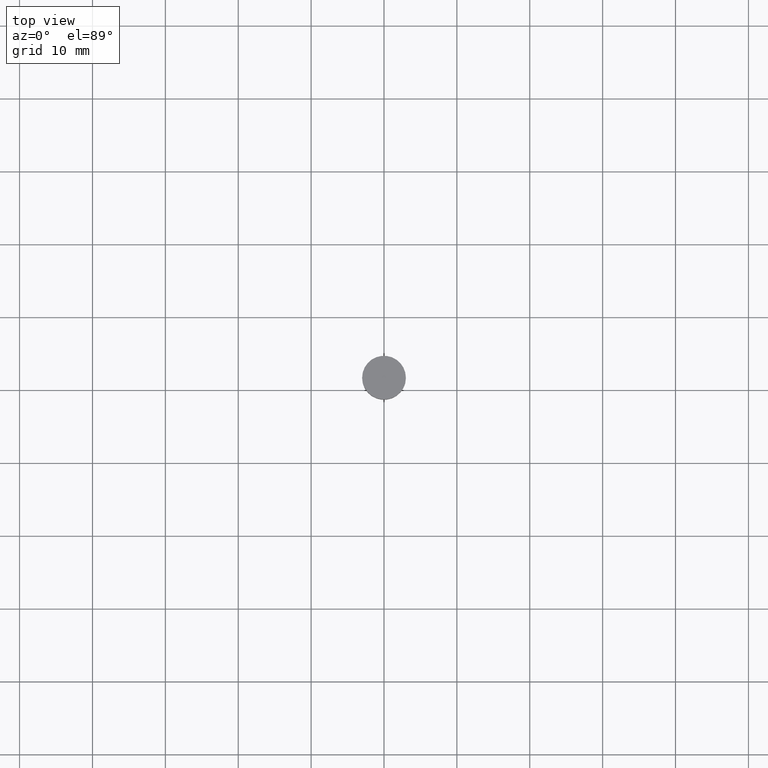
[diagram: clean part render]
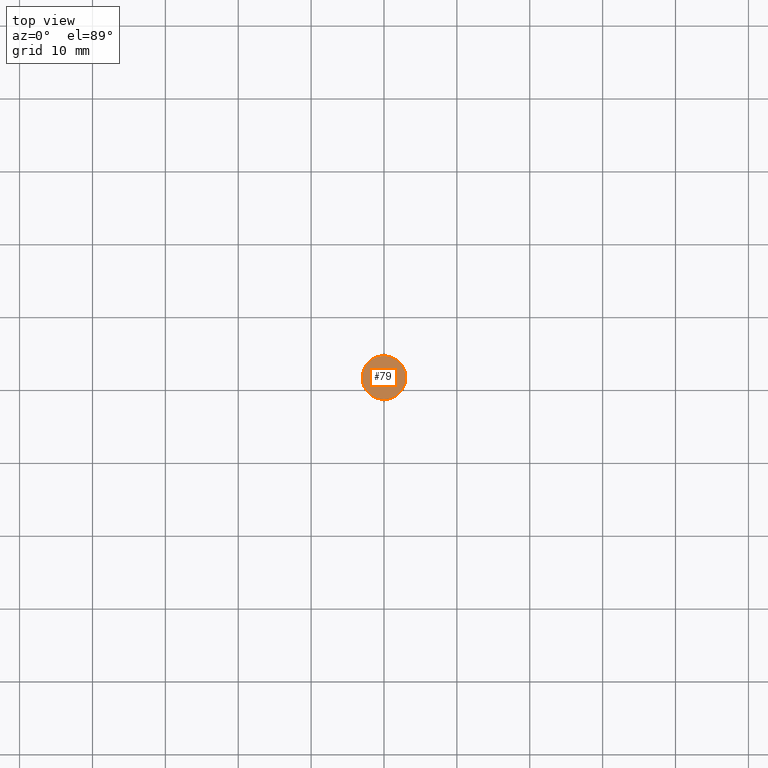
[diagram: same view with one face highlighted and labeled with its STEP entity id]
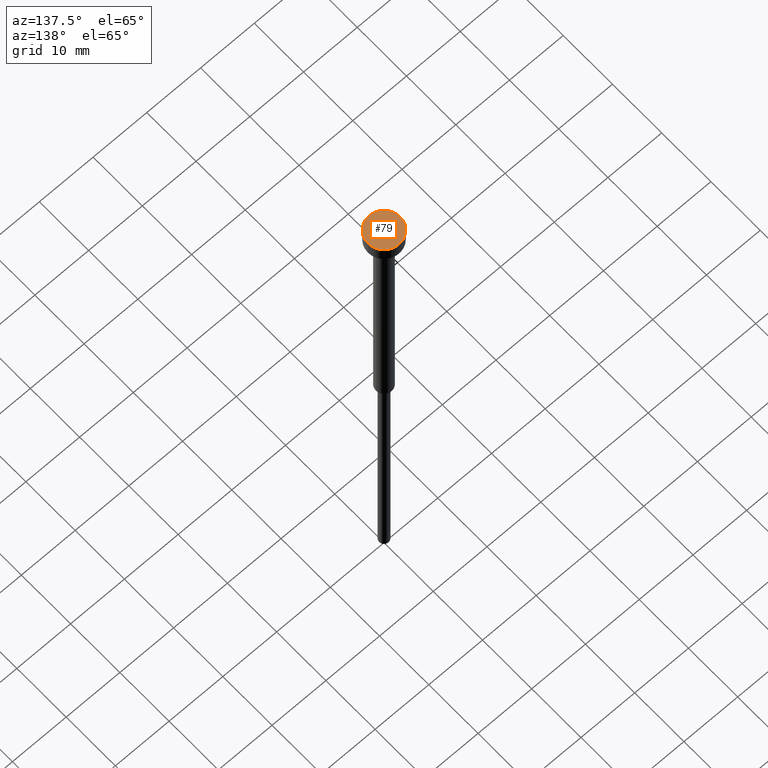
[diagram: same view with one face highlighted and labeled with its STEP entity id]
A machine part, top view. The second image highlights one B-rep face of the part: STEP entity #79.
A second angle (auxiliary view) of the same face is appended — the face is thin or edge-on in the first view.
In plain terms, the highlighted planar face has unit normal (0, -0, 1).
Its self-contained STEP definition (entity closure, byte-faithful):
#7 = EDGE_CURVE ( 'NONE', #144, #146, #316, .T. ) ;
#49 = ORIENTED_EDGE ( 'NONE', *, *, #340, .T. ) ;
#51 = CARTESIAN_POINT ( 'NONE',  ( 3.000000000000000000, 0.000000000000000000, -3.673940397442059868E-16 ) ) ;
#52 = PLANE ( 'NONE',  #258 ) ;
#57 = AXIS2_PLACEMENT_3D ( 'NONE', #198, #195, #87 ) ;
#79 = ADVANCED_FACE ( 'NONE', ( #244 ), #52, .T. ) ;
#87 = DIRECTION ( 'NONE',  ( 1.000000000000000000, 0.000000000000000000, 0.000000000000000000 ) ) ;
#99 = DIRECTION ( 'NONE',  ( -0.000000000000000000, -0.000000000000000000, 1.000000000000000000 ) ) ;
#102 = AXIS2_PLACEMENT_3D ( 'NONE', #127, #99, #320 ) ;
#104 = CIRCLE ( 'NONE', #57, 3.000000000000000000 ) ;
#109 = CARTESIAN_POINT ( 'NONE',  ( -3.000000000000000000, 3.673940397442059868E-16, -3.673940397442059868E-16 ) ) ;
#127 = CARTESIAN_POINT ( 'NONE',  ( 0.000000000000000000, 0.000000000000000000, -3.673940397442059868E-16 ) ) ;
#144 = VERTEX_POINT ( 'NONE', #51 ) ;
#146 = VERTEX_POINT ( 'NONE', #109 ) ;
#195 = DIRECTION ( 'NONE',  ( -0.000000000000000000, -0.000000000000000000, 1.000000000000000000 ) ) ;
#198 = CARTESIAN_POINT ( 'NONE',  ( 0.000000000000000000, 0.000000000000000000, -3.673940397442059868E-16 ) ) ;
#214 = DIRECTION ( 'NONE',  ( 1.000000000000000000, 0.000000000000000000, 0.000000000000000000 ) ) ;
#237 = DIRECTION ( 'NONE',  ( 0.000000000000000000, -0.000000000000000000, 1.000000000000000000 ) ) ;
#244 = FACE_OUTER_BOUND ( 'NONE', #262, .T. ) ;
#258 = AXIS2_PLACEMENT_3D ( 'NONE', #269, #237, #214 ) ;
#262 = EDGE_LOOP ( 'NONE', ( #308, #49 ) ) ;
#269 = CARTESIAN_POINT ( 'NONE',  ( 0.000000000000000000, 0.000000000000000000, -1.836970198721029934E-16 ) ) ;
#308 = ORIENTED_EDGE ( 'NONE', *, *, #7, .T. ) ;
#316 = CIRCLE ( 'NONE', #102, 3.000000000000000000 ) ;
#320 = DIRECTION ( 'NONE',  ( 1.000000000000000000, 0.000000000000000000, 0.000000000000000000 ) ) ;
#340 = EDGE_CURVE ( 'NONE', #146, #144, #104, .T. ) ;